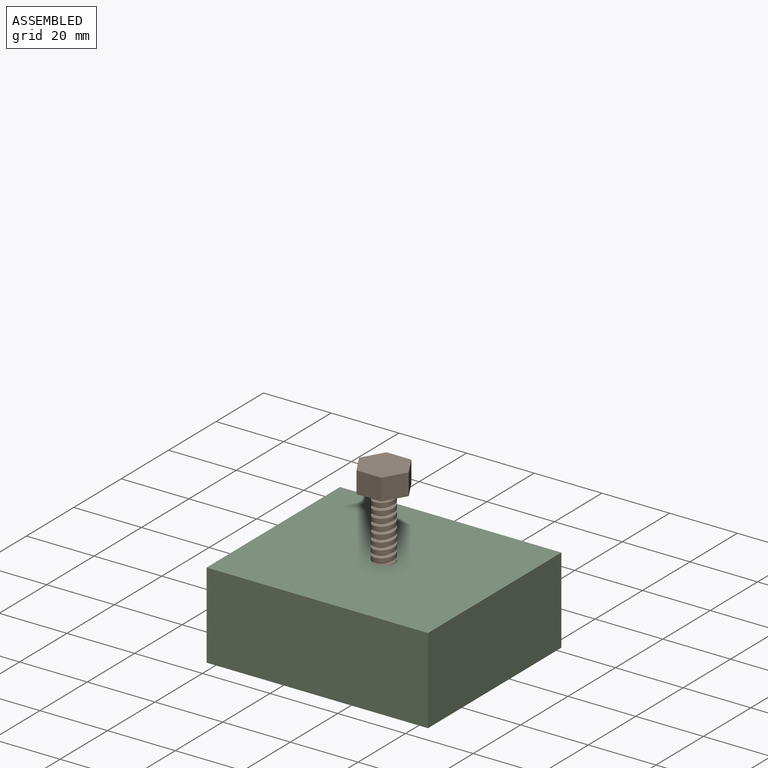
[diagram: assembled view]
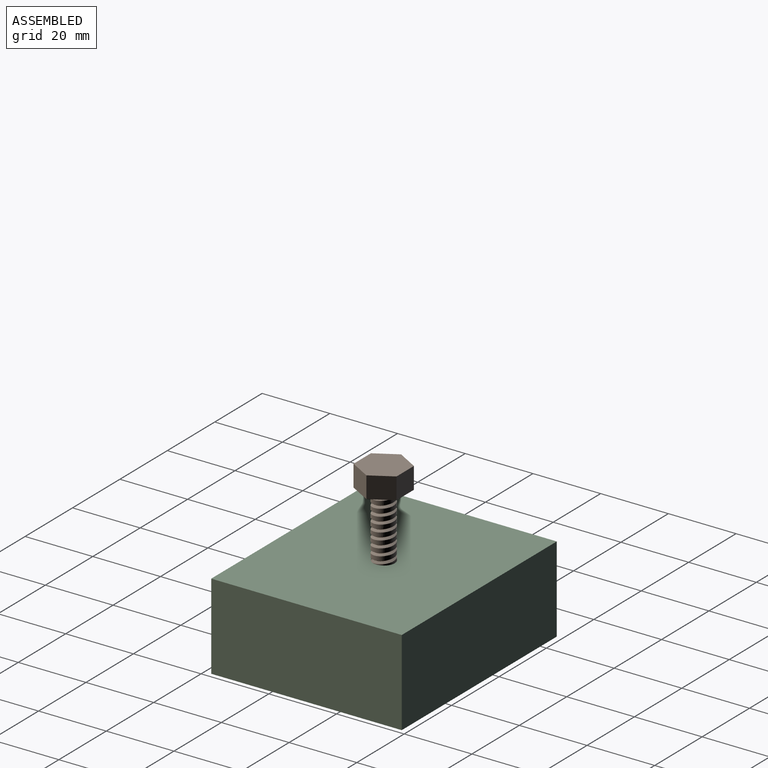
[diagram: assembled view, second angle]
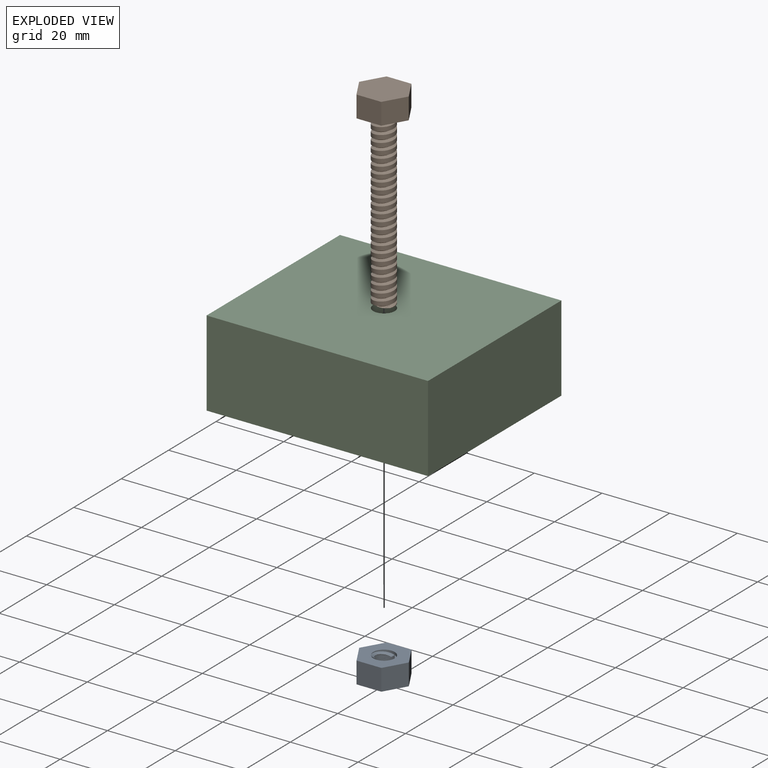
[diagram: exploded view]
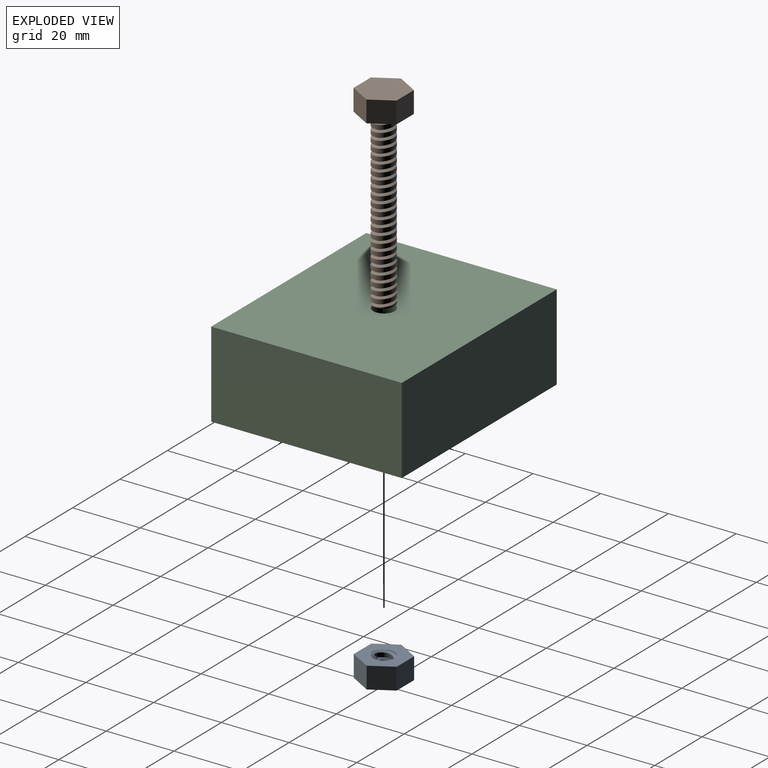
[diagram: exploded view, second angle]
ASSEMBLY  parts=3 mates=2
PART A: 13 faces, bbox 14.9x13x8.2 mm
  f0: bspline ~7.85x7.33mm, area 52mm2, adj f1,f8,f9,f11,f12
  f1: bspline ~7.5x7.33mm, area 48.6mm2, adj f0,f8,f9,f11
  f2: plane 7.33x6.35mm, normal (0,-1,0), area 46.6mm2, adj f3,f7,f9,f10
  f3: plane 6.35x6.35mm, normal (-0.87,-0.5,0), area 46.6mm2, adj f2,f4,f9,f10
  f4: plane 6.35x6.35mm, normal (-0.87,0.5,0), area 46.6mm2, adj f3,f5,f9,f10
  f5: plane 7.33x6.35mm, normal (0,1,0), area 46.6mm2, adj f4,f6,f9,f10
  f6: plane 6.35x6.35mm, normal (0.87,0.5,0), area 46.6mm2, adj f5,f7,f9,f10
  f7: plane 6.35x6.35mm, normal (0.87,-0.5,0), area 46.6mm2, adj f2,f6,f9,f10
  f8: cylinder r=3.17mm len=6.35mm, axis (0,0,-1), area 73.6mm2, adj f0,f1,f9,f10
  f9: plane 14.95x12.98mm, normal (0,0,1), area 111mm2, adj f0,f1,f2,f3,f4,f5,f6,f7
  f10: plane 14.66x12.7mm, normal (0,0,-1), area 108mm2, adj f2,f3,f4,f5,f6,f7,f8,f12
  f11: plane 0.89x0.77mm, normal (0,-1,0), area 0.3mm2, adj f0,f1,f12
  f12: cylinder r=3.17mm len=5.96mm, axis (0,0,1), area 3.7mm2, adj f0,f10,f11
PART B: 13 faces, bbox 15x13x58 mm
  f0: cylinder r=3.17mm len=50.8mm, axis (0,0,1), area 679mm2, adj f1,f9,f10,f11,f12
  f1: plane 6.64x6.08mm, normal (0,0,-1), area 28.7mm2, adj f0,f10,f11
  f2: plane 7.33x6.35mm, normal (0,-1,0), area 46.6mm2, adj f3,f7,f8,f9
  f3: plane 6.35x6.35mm, normal (0.87,-0.5,0), area 46.6mm2, adj f2,f4,f8,f9
  f4: plane 6.35x6.35mm, normal (0.87,0.5,0), area 46.6mm2, adj f3,f5,f8,f9
  f5: plane 7.33x6.35mm, normal (0,1,0), area 46.6mm2, adj f4,f6,f8,f9
  f6: plane 6.35x6.35mm, normal (-0.87,0.5,0), area 46.6mm2, adj f5,f7,f8,f9
  f7: plane 6.35x6.35mm, normal (-0.87,-0.5,0), area 46.6mm2, adj f2,f6,f8,f9
  f8: plane 14.66x12.7mm, normal (0,0,1), area 139.7mm2, adj f2,f3,f4,f5,f6,f7
  f9: plane 14.66x12.7mm, normal (0,0,-1), area 108mm2, adj f0,f2,f3,f4,f5,f6,f7
  f10: bspline ~50.89x7.33mm, area 372mm2, adj f0,f1,f11,f12
  f11: bspline ~51.24x7.33mm, area 374.8mm2, adj f0,f1,f10,f12
  f12: plane 0.89x0.77mm, normal (0,-1,0), area 0.3mm2, adj f0,f10,f11
PART C: 7 faces, bbox 65.4x56.3x25.4 mm
  f0: plane 56.28x25.4mm, normal (-1,0,0), area 1429.5mm2, adj f1,f3,f5,f6
  f1: plane 65.41x25.4mm, normal (0,-1,0), area 1661.3mm2, adj f0,f2,f5,f6
  f2: plane 56.28x25.4mm, normal (1,0,0), area 1429.5mm2, adj f1,f3,f5,f6
  f3: plane 65.41x25.4mm, normal (0,1,0), area 1661.3mm2, adj f0,f2,f5,f6
  f4: cylinder r=3.17mm len=25.4mm, axis (0,0,1), area 506.7mm2, adj f5,f6
  f5: plane 65.41x56.28mm, normal (0,0,-1), area 3649.5mm2, adj f0,f1,f2,f3,f4
  f6: plane 65.41x56.28mm, normal (0,0,1), area 3649.5mm2, adj f0,f1,f2,f3,f4
PLACE A rot(axis=(1,0,0),180deg) t=(-0.25,-0.13,-53.73)mm
PLACE B rot(axis=(0,0,1),180deg) t=(-0.23,-0.2,41.52)mm
PLACE C t=(-0.25,-0.13,22.47)mm fixed
MATE fastened A.f8 <-> C.f4  axis (0,0,1) through (-0.25,-0.13,-2.93)mm
MATE cylindrical B.f0 <-> A.f9  axis (0,0,-1) through (-0.23,-0.2,-9.28)mm
